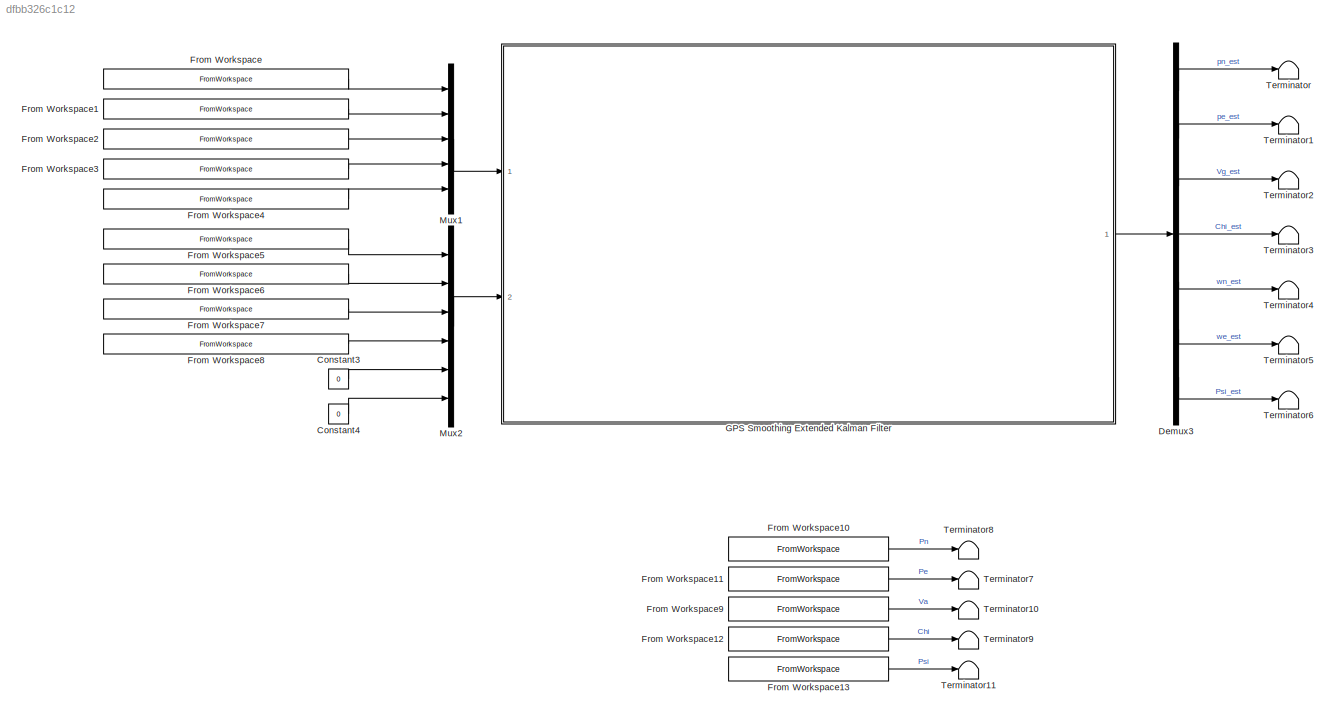
MODEL slx_dfbb326c1c12
KIND model
CONFIG AbsTol = auto
CONFIG EnableMultiTasking = off
CONFIG FixedStep = 0.001
CONFIG MaxStep = auto
CONFIG MinStep = auto
CONFIG RelTol = 1e-3
CONFIG SampleTimeConstraint = Unconstrained
CONFIG Solver = FixedStepAuto
CONFIG SolverName = FixedStepAuto
CONFIG StartTime = 0.0
CONFIG StopTime = 120
BLOCK [Constant] Constant3
  Value = 0
BLOCK [Constant] Constant4
  Value = 0
BLOCK [Demux] Demux3
  DisplayOption = bar
  Outputs = 7
  Ports = [1, 7]
BLOCK [FromWorkspace] From Workspace
  Interpolate = off
  OutputAfterFinalValue = Holding final value
  VariableName = SkywalkerX8.Sensors.EKF.GPSSmoothing.TestProfile.Va
  ZeroCross = on
BLOCK [FromWorkspace] From Workspace1
  Interpolate = off
  OutputAfterFinalValue = Holding final value
  VariableName = SkywalkerX8.Sensors.EKF.GPSSmoothing.TestProfile.q
  ZeroCross = on
BLOCK [FromWorkspace] From Workspace10
  Interpolate = off
  OutputAfterFinalValue = Holding final value
  VariableName = SkywalkerX8.Sensors.TestProfile.Pn
  ZeroCross = on
BLOCK [FromWorkspace] From Workspace11
  Interpolate = off
  OutputAfterFinalValue = Holding final value
  VariableName = SkywalkerX8.Sensors.TestProfile.Pe
  ZeroCross = on
BLOCK [FromWorkspace] From Workspace12
  Interpolate = off
  OutputAfterFinalValue = Holding final value
  VariableName = SkywalkerX8.Sensors.TestProfile.Chi
  ZeroCross = on
BLOCK [FromWorkspace] From Workspace13
  Interpolate = off
  OutputAfterFinalValue = Holding final value
  VariableName = SkywalkerX8.Sensors.TestProfile.Psi
  ZeroCross = on
BLOCK [FromWorkspace] From Workspace2
  OutputAfterFinalValue = Holding final value
  VariableName = SkywalkerX8.Sensors.EKF.GPSSmoothing.TestProfile.r
  ZeroCross = on
BLOCK [FromWorkspace] From Workspace3
  Interpolate = off
  OutputAfterFinalValue = Holding final value
  VariableName = SkywalkerX8.Sensors.EKF.GPSSmoothing.TestProfile.Phi
  ZeroCross = on
BLOCK [FromWorkspace] From Workspace4
  Interpolate = off
  OutputAfterFinalValue = Holding final value
  VariableName = SkywalkerX8.Sensors.EKF.GPSSmoothing.TestProfile.Theta
  ZeroCross = on
BLOCK [FromWorkspace] From Workspace5
  Interpolate = off
  OutputAfterFinalValue = Holding final value
  VariableName = SkywalkerX8.Sensors.EKF.GPSSmoothing.TestProfile.yGPSN
  ZeroCross = on
BLOCK [FromWorkspace] From Workspace6
  Interpolate = off
  OutputAfterFinalValue = Holding final value
  VariableName = SkywalkerX8.Sensors.EKF.GPSSmoothing.TestProfile.yGPSE
  ZeroCross = on
BLOCK [FromWorkspace] From Workspace7
  Interpolate = off
  OutputAfterFinalValue = Holding final value
  VariableName = SkywalkerX8.Sensors.EKF.GPSSmoothing.TestProfile.yGPSVg
  ZeroCross = on
BLOCK [FromWorkspace] From Workspace8
  Interpolate = off
  OutputAfterFinalValue = Holding final value
  VariableName = SkywalkerX8.Sensors.EKF.GPSSmoothing.TestProfile.yGPSChi
  ZeroCross = on
BLOCK [FromWorkspace] From Workspace9
  Interpolate = off
  OutputAfterFinalValue = Holding final value
  VariableName = SkywalkerX8.Sensors.TestProfile.Va
  ZeroCross = on
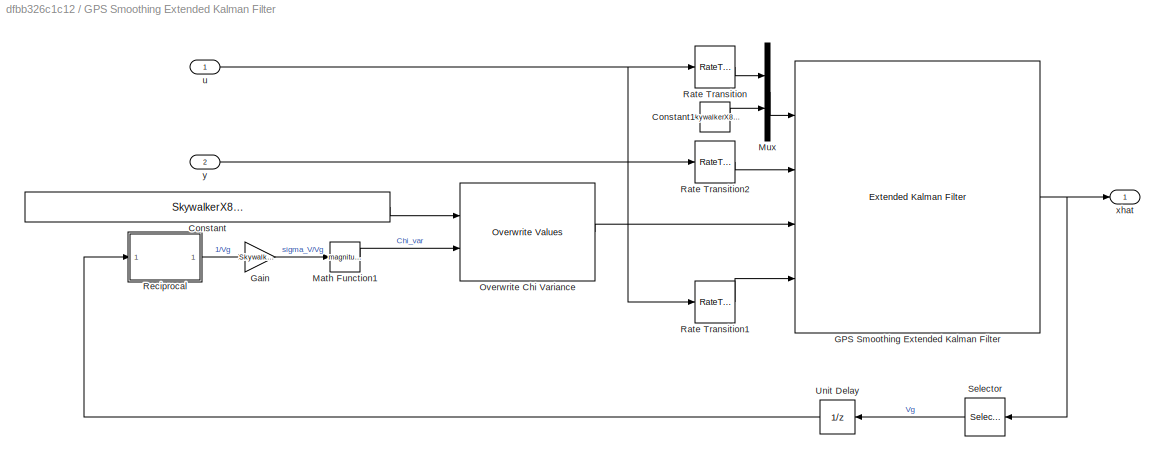
BLOCK [SubSystem] GPS Smoothing Extended Kalman Filter
  Ports = [2, 1]
  RequestExecContextInheritance = off
BLOCK [Constant] GPS Smoothing Extended Kalman Filter/Constant
  Value = SkywalkerX8.Sensors.EKF.GPSSmoothing.MeasurementCovarianceMatrix
BLOCK [Constant] GPS Smoothing Extended Kalman Filter/Constant1
  Value = SkywalkerX8.Sensors.EKF.GPSSmoothing.SampleTime
BLOCK [Reference] GPS Smoothing Extended Kalman Filter/GPS Smoothing Extended Kalman Filter  REF=sharedTrackingLibrary/Extended Kalman Filter
  Ports = [4, 1]
  SourceBlock = sharedTrackingLibrary/Extended Kalman Filter
  SourceProductBaseCode = CT
  SourceProductName = Control System Toolbox
  SourceType = Extended Kalman Filter
BLOCK [Gain] GPS Smoothing Extended Kalman Filter/Gain
  Gain = SkywalkerX8.Sensors.GPS.Velocity.StdDev
  OutDataTypeStr = Inherit: Inherit via internal rule
  ParamDataTypeStr = Inherit: Inherit via internal rule
  SaturateOnIntegerOverflow = off
BLOCK [Math] GPS Smoothing Extended Kalman Filter/Math Function1
  Operator = magnitude^2
  Ports = [1, 1]
BLOCK [Mux] GPS Smoothing Extended Kalman Filter/Mux
  DisplayOption = bar
  Inputs = 2
  Ports = [2, 1]
BLOCK [Reference] GPS Smoothing Extended Kalman Filter/Overwrite Chi Variance  REF=dspmtrx3/Overwrite Values
  Ports = [2, 1]
  SourceBlock = dspmtrx3/Overwrite Values
  SourceProductBaseCode = DS
  SourceProductName = DSP System Toolbox
  SourceType = Overwrite Values
BLOCK [RateTransition] GPS Smoothing Extended Kalman Filter/Rate Transition
  InitialCondition = SkywalkerX8.Sensors.EKF.GPSSmoothing.InitialInput
  OutPortSampleTime = SkywalkerX8.Sensors.EKF.GPSSmoothing.StateTransitionSampleTime
BLOCK [RateTransition] GPS Smoothing Extended Kalman Filter/Rate Transition1
  InitialCondition = SkywalkerX8.Sensors.EKF.GPSSmoothing.InitialInput
  OutPortSampleTime = SkywalkerX8.Sensors.EKF.GPSSmoothing.MeasurementSampleTime
BLOCK [RateTransition] GPS Smoothing Extended Kalman Filter/Rate Transition2
  InitialCondition = SkywalkerX8.Sensors.EKF.GPSSmoothing.InitialMeasurement
  OutPortSampleTime = SkywalkerX8.Sensors.EKF.GPSSmoothing.MeasurementSampleTime
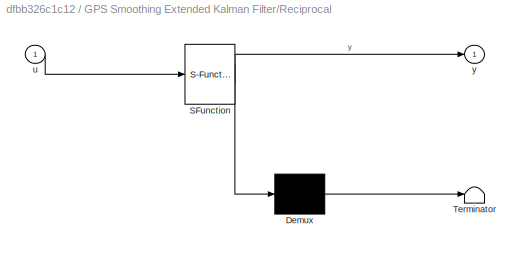
BLOCK [SubSystem] GPS Smoothing Extended Kalman Filter/Reciprocal
  ErrorFcn = Stateflow.Translate.translate
  PermitHierarchicalResolution = ExplicitOnly
  Ports = [1, 1]
  RequestExecContextInheritance = off
  SFBlockType = MATLAB Function
  TreatAsAtomicUnit = on
BLOCK [Demux] GPS Smoothing Extended Kalman Filter/Reciprocal/ Demux 
  Outputs = 1
  Ports = [1, 1]
BLOCK [S-Function] GPS Smoothing Extended Kalman Filter/Reciprocal/ SFunction 
  EnableBusSupport = on
  FunctionName = sf_sfun
  PortCounts = [1 2]
  Ports = [1, 2]
  SFcnIsStateOwnerBlock = off
  SFunctionDeploymentMode = off
  Tag = Stateflow S-Function GPSSmoothingEstimationVerification 2
BLOCK [Terminator] GPS Smoothing Extended Kalman Filter/Reciprocal/ Terminator 
BLOCK [Inport] GPS Smoothing Extended Kalman Filter/Reciprocal/u
  IconDisplay = Port number
BLOCK [Outport] GPS Smoothing Extended Kalman Filter/Reciprocal/y
  IconDisplay = Port number
BLOCK [Selector] GPS Smoothing Extended Kalman Filter/Selector
  IndexOptions = Index vector (dialog)
  Indices = 3
  InputPortWidth = 7
  OutputSizes = 1
  Ports = [1, 1]
BLOCK [UnitDelay] GPS Smoothing Extended Kalman Filter/Unit Delay
  InitialCondition = SkywalkerX8.Sensors.EKF.GPSSmoothing.InitialState(3)
  InputProcessing = Elements as channels (sample based)
  SampleTime = SkywalkerX8.Sensors.EKF.GPSSmoothing.MeasurementSampleTime
BLOCK [Inport] GPS Smoothing Extended Kalman Filter/u
  IconDisplay = Port number
  PortDimensions = 5
BLOCK [Outport] GPS Smoothing Extended Kalman Filter/xhat
  IconDisplay = Port number
BLOCK [Inport] GPS Smoothing Extended Kalman Filter/y
  IconDisplay = Port number
  Port = 2
  PortDimensions = 6
BLOCK [Mux] Mux1
  DisplayOption = bar
  Inputs = 5
  Ports = [5, 1]
BLOCK [Mux] Mux2
  DisplayOption = bar
  Inputs = 6
  Ports = [6, 1]
BLOCK [Terminator] Terminator
BLOCK [Terminator] Terminator1
BLOCK [Terminator] Terminator10
BLOCK [Terminator] Terminator11
BLOCK [Terminator] Terminator2
BLOCK [Terminator] Terminator3
BLOCK [Terminator] Terminator4
BLOCK [Terminator] Terminator5
BLOCK [Terminator] Terminator6
BLOCK [Terminator] Terminator7
BLOCK [Terminator] Terminator8
BLOCK [Terminator] Terminator9
LINE Constant3:1 -> Mux2:5
LINE Constant4:1 -> Mux2:6
LINE Demux3:1 -> Terminator:1
LINE Demux3:2 -> Terminator1:1
LINE Demux3:3 -> Terminator2:1
LINE Demux3:4 -> Terminator3:1
LINE Demux3:5 -> Terminator4:1
LINE Demux3:6 -> Terminator5:1
LINE Demux3:7 -> Terminator6:1
LINE From Workspace10:1 -> Terminator8:1
LINE From Workspace11:1 -> Terminator7:1
LINE From Workspace12:1 -> Terminator9:1
LINE From Workspace13:1 -> Terminator11:1
LINE From Workspace1:1 -> Mux1:2
LINE From Workspace2:1 -> Mux1:3
LINE From Workspace3:1 -> Mux1:4
LINE From Workspace4:1 -> Mux1:5
LINE From Workspace5:1 -> Mux2:1
LINE From Workspace6:1 -> Mux2:2
LINE From Workspace7:1 -> Mux2:3
LINE From Workspace8:1 -> Mux2:4
LINE From Workspace9:1 -> Terminator10:1
LINE From Workspace:1 -> Mux1:1
LINE GPS Smoothing Extended Kalman Filter/Constant1:1 -> GPS Smoothing Extended Kalman Filter/Mux:2
LINE GPS Smoothing Extended Kalman Filter/Constant:1 -> GPS Smoothing Extended Kalman Filter/Overwrite Chi Variance:1
NET GPS Smoothing Extended Kalman Filter/GPS Smoothing Extended Kalman Filter:1 -> GPS Smoothing Extended Kalman Filter/Selector:1, GPS Smoothing Extended Kalman Filter/xhat:1
LINE GPS Smoothing Extended Kalman Filter/Gain:1 -> GPS Smoothing Extended Kalman Filter/Math Function1:1
LINE GPS Smoothing Extended Kalman Filter/Math Function1:1 -> GPS Smoothing Extended Kalman Filter/Overwrite Chi Variance:2
LINE GPS Smoothing Extended Kalman Filter/Mux:1 -> GPS Smoothing Extended Kalman Filter/GPS Smoothing Extended Kalman Filter:1
LINE GPS Smoothing Extended Kalman Filter/Overwrite Chi Variance:1 -> GPS Smoothing Extended Kalman Filter/GPS Smoothing Extended Kalman Filter:3
LINE GPS Smoothing Extended Kalman Filter/Rate Transition1:1 -> GPS Smoothing Extended Kalman Filter/GPS Smoothing Extended Kalman Filter:4
LINE GPS Smoothing Extended Kalman Filter/Rate Transition2:1 -> GPS Smoothing Extended Kalman Filter/GPS Smoothing Extended Kalman Filter:2
LINE GPS Smoothing Extended Kalman Filter/Rate Transition:1 -> GPS Smoothing Extended Kalman Filter/Mux:1
LINE GPS Smoothing Extended Kalman Filter/Reciprocal:1 -> GPS Smoothing Extended Kalman Filter/Gain:1
LINE GPS Smoothing Extended Kalman Filter/Selector:1 -> GPS Smoothing Extended Kalman Filter/Unit Delay:1
LINE GPS Smoothing Extended Kalman Filter/Unit Delay:1 -> GPS Smoothing Extended Kalman Filter/Reciprocal:1
NET GPS Smoothing Extended Kalman Filter/u:1 -> GPS Smoothing Extended Kalman Filter/Rate Transition1:1, GPS Smoothing Extended Kalman Filter/Rate Transition:1
LINE GPS Smoothing Extended Kalman Filter/y:1 -> GPS Smoothing Extended Kalman Filter/Rate Transition2:1
LINE GPS Smoothing Extended Kalman Filter:1 -> Demux3:1
LINE Mux1:1 -> GPS Smoothing Extended Kalman Filter:1
LINE Mux2:1 -> GPS Smoothing Extended Kalman Filter:2
note: NET lines group one-source signal fan-out (src -> all destinations, sorted); 1:1 wires keep LINE
CHART GPS Smoothing
Extended Kalman Filter/Reciprocal states=1 transitions=1
  STATE_LABEL 'eML_blk_kernel()'
  STATE_LABEL 'SCRIPT:\nfunction y = reciprocal(u)\n\n    if (u ~= 0)\n       y = 1/u;\n    else\n       y = 1E06; \n    end\n\nend'
